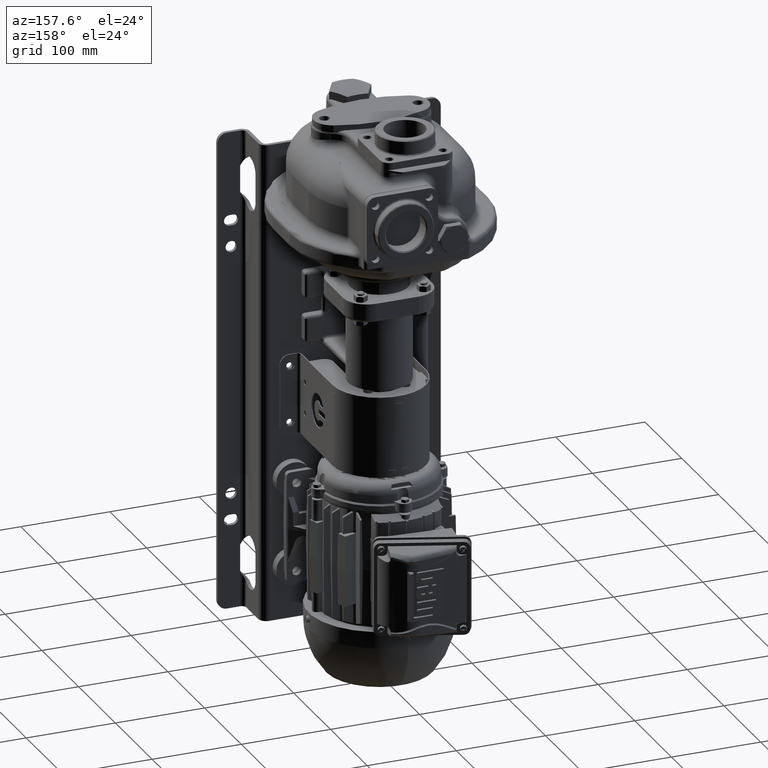
[diagram: clean part render]
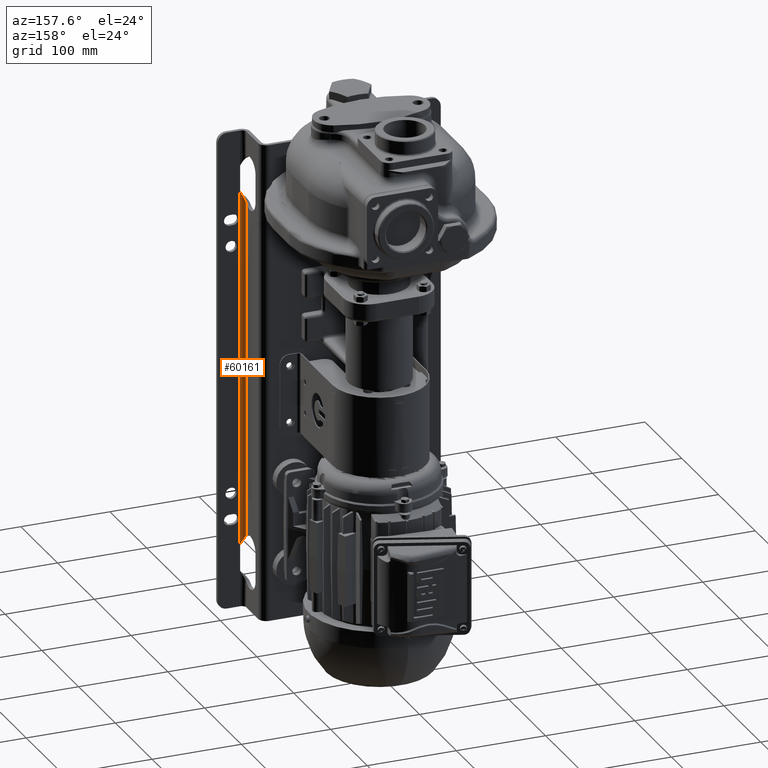
[diagram: same view with one face highlighted and labeled with its STEP entity id]
A machine part, auxiliary view. The second image highlights one B-rep face of the part: STEP entity #60161.
In plain terms, the highlighted cylindrical surface (edge-blend (fillet) strip) has radius 5 mm, axis along (0, 0, -1).
Its self-contained STEP definition (entity closure, byte-faithful):
#1444=DIRECTION('',(0.E0,0.E0,-1.E0));
#1445=VECTOR('',#1444,4.E2);
#1446=CARTESIAN_POINT('',(1.E2,-4.6E1,9.2E1));
#1447=LINE('',#1446,#1445);
#1546=CARTESIAN_POINT('',(9.5E1,-4.1E1,8.081966011250E1));
#1547=CARTESIAN_POINT('',(9.5E1,-4.107196212E1,8.088402498935E1));
#1548=CARTESIAN_POINT('',(9.500310822691E1,-4.121689057527E1,8.101617887739E1));
#1549=CARTESIAN_POINT('',(9.501746561630E1,-4.143672706813E1,8.122483993719E1));
#1550=CARTESIAN_POINT('',(9.504185181861E1,-4.165844569348E1,8.144408472843E1));
#1551=CARTESIAN_POINT('',(9.507659119740E1,-4.188163917080E1,8.167422820829E1));
#1552=CARTESIAN_POINT('',(9.512206492069E1,-4.210609647113E1,8.191586543862E1));
#1553=CARTESIAN_POINT('',(9.517852109534E1,-4.233097099972E1,8.216898719978E1));
#1554=CARTESIAN_POINT('',(9.524628356443E1,-4.255590151493E1,8.243420167194E1));
#1555=CARTESIAN_POINT('',(9.532571476051E1,-4.278051712750E1,8.271209464774E1));
#1556=CARTESIAN_POINT('',(9.541713039118E1,-4.300426524482E1,8.300305146503E1));
#1557=CARTESIAN_POINT('',(9.552088378860E1,-4.322662156064E1,8.330754886639E1));
#1558=CARTESIAN_POINT('',(9.563694241924E1,-4.344634004287E1,8.362508377816E1));
#1559=CARTESIAN_POINT('',(9.576557335300E1,-4.366290545031E1,8.395617354701E1));
#1560=CARTESIAN_POINT('',(9.590693211413E1,-4.387555666562E1,8.430099304226E1));
#1561=CARTESIAN_POINT('',(9.606111090798E1,-4.408346623482E1,8.465964527605E1));
#1562=CARTESIAN_POINT('',(9.622804542955E1,-4.428566574285E1,8.503201938913E1));
#1563=CARTESIAN_POINT('',(9.640799497431E1,-4.448158119833E1,8.541883850886E1));
#1564=CARTESIAN_POINT('',(9.660069403341E1,-4.467004455433E1,8.581963795944E1));
#1565=CARTESIAN_POINT('',(9.680576264145E1,-4.484992619931E1,8.623382621505E1));
#1566=CARTESIAN_POINT('',(9.702288630084E1,-4.502025827341E1,8.666108063976E1));
#1567=CARTESIAN_POINT('',(9.725177989597E1,-4.518013631706E1,8.710123264940E1));
#1568=CARTESIAN_POINT('',(9.749166394613E1,-4.532839339081E1,8.755323865335E1));
#1569=CARTESIAN_POINT('',(9.774179062990E1,-4.546404825415E1,8.801628761663E1));
#1570=CARTESIAN_POINT('',(9.800164156499E1,-4.558631335431E1,8.849000614303E1));
#1571=CARTESIAN_POINT('',(9.827011454147E1,-4.569420670767E1,8.897300225786E1));
#1572=CARTESIAN_POINT('',(9.854616493826E1,-4.578694163063E1,8.946415188424E1));
#1573=CARTESIAN_POINT('',(9.882891745482E1,-4.586387931734E1,8.996270301397E1));
#1574=CARTESIAN_POINT('',(9.911691794056E1,-4.592433877007E1,9.046687557977E1));
#1575=CARTESIAN_POINT('',(9.940888141723E1,-4.596786919183E1,9.097525021342E1));
#1576=CARTESIAN_POINT('',(9.970380687267E1,-4.599414651957E1,9.148697411898E1));
#1577=CARTESIAN_POINT('',(9.990117106578E1,-4.6E1,9.182882326468E1));
#1578=CARTESIAN_POINT('',(1.E2,-4.6E1,9.2E1));
#1580=DIRECTION('',(0.E0,0.E0,-1.E0));
#1581=VECTOR('',#1580,3.776393202250E2);
#1582=CARTESIAN_POINT('',(9.5E1,-4.1E1,8.081966011250E1));
#1583=LINE('',#1582,#1581);
#1584=CARTESIAN_POINT('',(1.E2,-4.6E1,-3.08E2));
#1585=CARTESIAN_POINT('',(9.990117284389E1,-4.6E1,-3.078288263444E2));
#1586=CARTESIAN_POINT('',(9.970381213867E1,-4.599414669029E1,
-3.074869849575E2));
#1587=CARTESIAN_POINT('',(9.940889589110E1,-4.596787070390E1,
-3.069752758879E2));
#1588=CARTESIAN_POINT('',(9.911694287036E1,-4.592434303009E1,
-3.064669182097E2));
#1589=CARTESIAN_POINT('',(9.882895179868E1,-4.586388739725E1,
-3.059627678870E2));
#1590=CARTESIAN_POINT('',(9.854620779473E1,-4.578695443823E1,
-3.054642321556E2));
#1591=CARTESIAN_POINT('',(9.827016822374E1,-4.569422617663E1,
-3.049730955881E2));
#1592=CARTESIAN_POINT('',(9.800170843526E1,-4.558634221262E1,
-3.044901234838E2));
#1593=CARTESIAN_POINT('',(9.774186378730E1,-4.546408512907E1,
-3.040164200925E2));
#1594=CARTESIAN_POINT('',(9.749174151723E1,-4.532843807945E1,
-3.035533838982E2));
#1595=CARTESIAN_POINT('',(9.725186854676E1,-4.518019420951E1,
-3.031014063378E2));
#1596=CARTESIAN_POINT('',(9.702298173586E1,-4.502032881188E1,
-3.026612711561E2));
#1597=CARTESIAN_POINT('',(9.680586002748E1,-4.485000650243E1,
-3.022340195201E2));
#1598=CARTESIAN_POINT('',(9.660081014383E1,-4.467015139936E1,
-3.018198749622E2));
#1599=CARTESIAN_POINT('',(9.640811358506E1,-4.448170360149E1,
-3.014190893263E2));
#1600=CARTESIAN_POINT('',(9.622814837417E1,-4.428578458672E1,
-3.010322431021E2));
#1601=CARTESIAN_POINT('',(9.606118556997E1,-4.408356285719E1,
-3.006598117784E2));
#1602=CARTESIAN_POINT('',(9.590697143007E1,-4.387561441467E1,
-3.003010892490E2));
#1603=CARTESIAN_POINT('',(9.576557462421E1,-4.366290967749E1,
-2.999561873017E2));
#1604=CARTESIAN_POINT('',(9.563691520465E1,-4.344629270678E1,
-2.996250232939E2));
#1605=CARTESIAN_POINT('',(9.552085668478E1,-4.322656651715E1,
-2.993074622315E2));
#1606=CARTESIAN_POINT('',(9.541711444473E1,-4.300422791607E1,
-2.990029661598E2));
#1607=CARTESIAN_POINT('',(9.532570880839E1,-4.278050012306E1,
-2.987120288153E2));
#1608=CARTESIAN_POINT('',(9.524628915659E1,-4.255591720657E1,
-2.984341893412E2));
#1609=CARTESIAN_POINT('',(9.517852838536E1,-4.233099764024E1,
-2.981690137941E2));
#1610=CARTESIAN_POINT('',(9.512206670714E1,-4.210610652610E1,
-2.979158929116E2));
#1611=CARTESIAN_POINT('',(9.507658502945E1,-4.188160875611E1,
-2.976742208128E2));
#1612=CARTESIAN_POINT('',(9.504184147859E1,-4.165837186244E1,
-2.974440327495E2));
#1613=CARTESIAN_POINT('',(9.501745697402E1,-4.143663012184E1,
-2.972247598759E2));
#1614=CARTESIAN_POINT('',(9.500310511865E1,-4.121680488964E1,
-2.970161033362E2));
#1615=CARTESIAN_POINT('',(9.5E1,-4.107192746175E1,-2.968839939901E2));
#1616=CARTESIAN_POINT('',(9.5E1,-4.1E1,-2.968196601125E2));
#57423=CARTESIAN_POINT('',(9.5E1,-4.1E1,8.081966011250E1));
#57424=VERTEX_POINT('',#57423);
#57432=CARTESIAN_POINT('',(9.5E1,-4.1E1,-2.968196601125E2));
#57434=VERTEX_POINT('',#57432);
#57435=VERTEX_POINT('',#1578);
#57439=CARTESIAN_POINT('',(1.E2,-4.6E1,-3.08E2));
#57440=VERTEX_POINT('',#57439);
#60148=CARTESIAN_POINT('',(1.E2,-4.1E1,1.62E2));
#60149=DIRECTION('',(0.E0,0.E0,-1.E0));
#60150=DIRECTION('',(-1.E0,0.E0,0.E0));
#60151=AXIS2_PLACEMENT_3D('',#60148,#60149,#60150);
#60152=CYLINDRICAL_SURFACE('',#60151,5.E0);
#60154=ORIENTED_EDGE('',*,*,#60153,.F.);
#60155=ORIENTED_EDGE('',*,*,#59952,.T.);
#60157=ORIENTED_EDGE('',*,*,#60156,.F.);
#60158=ORIENTED_EDGE('',*,*,#60086,.F.);
#60159=EDGE_LOOP('',(#60154,#60155,#60157,#60158));
#60160=FACE_OUTER_BOUND('',#60159,.F.);
#60161=ADVANCED_FACE('',(#60160),#60152,.F.);
#1579=B_SPLINE_CURVE_WITH_KNOTS('',3,(#1546,#1547,#1548,#1549,#1550,#1551,#1552,
#1553,#1554,#1555,#1556,#1557,#1558,#1559,#1560,#1561,#1562,#1563,#1564,#1565,
#1566,#1567,#1568,#1569,#1570,#1571,#1572,#1573,#1574,#1575,#1576,#1577,#1578),
.UNSPECIFIED.,.F.,.F.,(4,1,1,1,1,1,1,1,1,1,1,1,1,1,1,1,1,1,1,1,1,1,1,1,1,1,1,1,
1,1,4),(0.E0,3.333333333333E-2,6.666666666667E-2,1.E-1,1.333333333333E-1,
1.666666666667E-1,2.E-1,2.333333333333E-1,2.666666666667E-1,3.E-1,
3.333333333333E-1,3.666666666667E-1,4.E-1,4.333333333333E-1,4.666666666667E-1,
5.E-1,5.333333333333E-1,5.666666666667E-1,6.E-1,6.333333333333E-1,
6.666666666667E-1,7.E-1,7.333333333333E-1,7.666666666667E-1,8.E-1,
8.333333333333E-1,8.666666666667E-1,9.E-1,9.333333333333E-1,9.666666666667E-1,
1.E0),.UNSPECIFIED.);
#1617=B_SPLINE_CURVE_WITH_KNOTS('',3,(#1584,#1585,#1586,#1587,#1588,#1589,#1590,
#1591,#1592,#1593,#1594,#1595,#1596,#1597,#1598,#1599,#1600,#1601,#1602,#1603,
#1604,#1605,#1606,#1607,#1608,#1609,#1610,#1611,#1612,#1613,#1614,#1615,#1616),
.UNSPECIFIED.,.F.,.F.,(4,1,1,1,1,1,1,1,1,1,1,1,1,1,1,1,1,1,1,1,1,1,1,1,1,1,1,1,
1,1,4),(0.E0,3.333333333333E-2,6.666666666667E-2,1.E-1,1.333333333333E-1,
1.666666666667E-1,2.E-1,2.333333333333E-1,2.666666666667E-1,3.E-1,
3.333333333333E-1,3.666666666667E-1,4.E-1,4.333333333333E-1,4.666666666667E-1,
5.E-1,5.333333333333E-1,5.666666666667E-1,6.E-1,6.333333333333E-1,
6.666666666667E-1,7.E-1,7.333333333333E-1,7.666666666667E-1,8.E-1,
8.333333333333E-1,8.666666666667E-1,9.E-1,9.333333333333E-1,9.666666666667E-1,
1.E0),.UNSPECIFIED.);
#59952=EDGE_CURVE('',#57424,#57434,#1583,.T.);
#60086=EDGE_CURVE('',#57435,#57440,#1447,.T.);
#60153=EDGE_CURVE('',#57424,#57435,#1579,.T.);
#60156=EDGE_CURVE('',#57440,#57434,#1617,.T.);